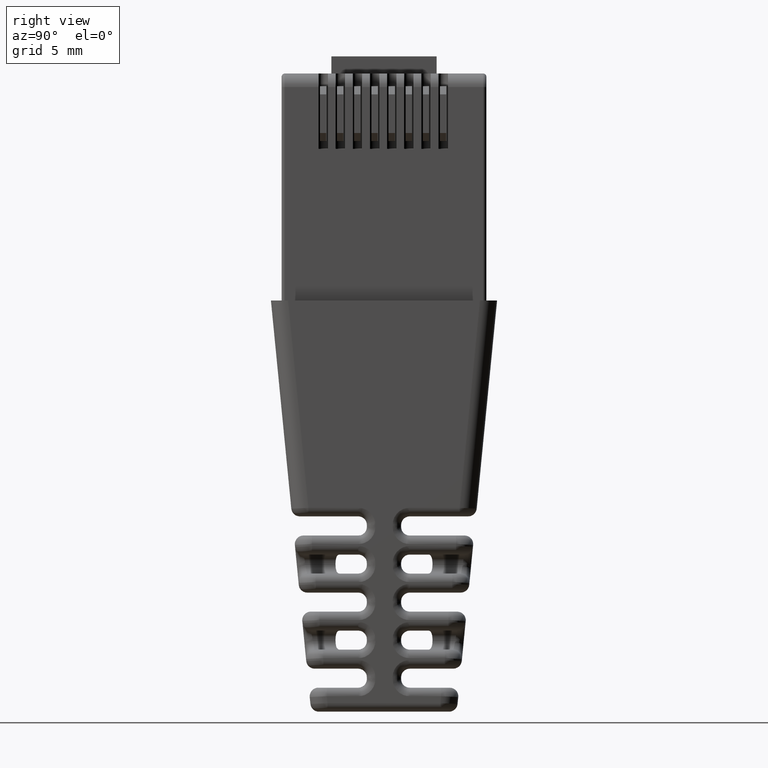
[diagram: clean part render]
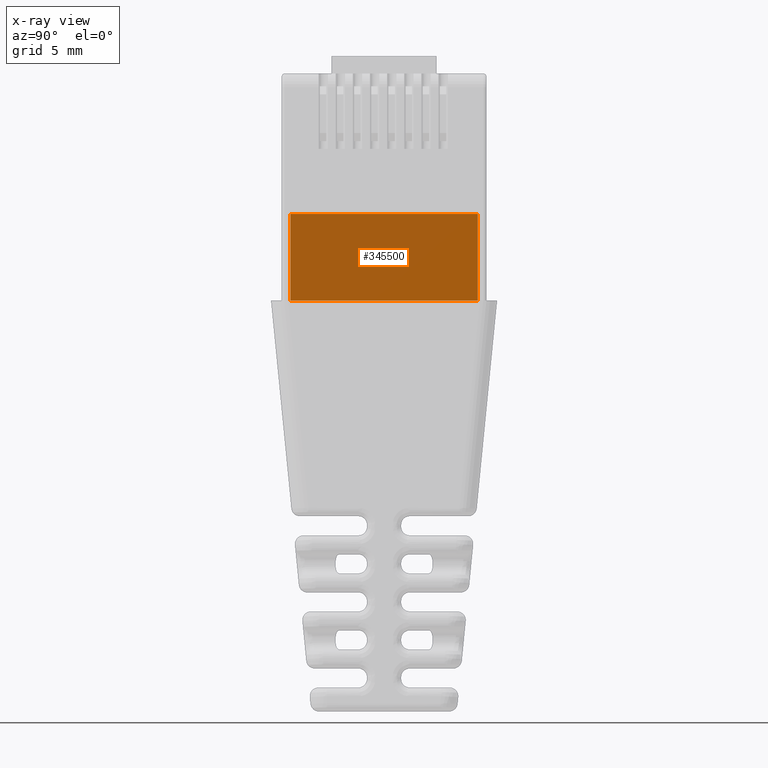
[diagram: x-ray — body ghosted, one internal face saturated and labeled with its STEP entity id]
A machine part, right view, then the same camera in x-ray: the body is ghosted and one INTERNAL B-rep face — a face not visible from any outside direction — is saturated and labeled: STEP entity #345500.
In plain terms, the highlighted planar face has unit normal (1, -0, -0).
Its self-contained STEP definition (entity closure, byte-faithful):
#344920=CARTESIAN_POINT('',(16.9031426136379,7.41886962969769,0.));
#344930=VERTEX_POINT('',#344920);
#344960=CARTESIAN_POINT('',(0.,7.41886962969769,0.));
#344970=DIRECTION('',(1.,3.38963670212153E-32,0.));
#344980=VECTOR('',#344970,1.);
#344990=LINE('',#344960,#344980);
#345000=CARTESIAN_POINT('',(5.95314261363792,7.41886962969769,0.));
#345010=VERTEX_POINT('',#345000);
#345020=EDGE_CURVE('',#345010,#344930,#344990,.T.);
#345200=CARTESIAN_POINT('',(5.95314261363792,7.41886962969769,3.75));
#345210=DIRECTION('',(3.38963670212153E-32,-1.,3.88578058618805E-16));
#345220=DIRECTION('',(-1.,3.08148791101958E-32,1.66533453693773E-16));
#345230=AXIS2_PLACEMENT_3D('',#345200,#345210,#345220);
#345240=PLANE('',#345230);
#345250=ORIENTED_EDGE('',*,*,#345020,.F.);
#345260=CARTESIAN_POINT('',(16.9031426136379,7.41886962969768,-13.25));
#345270=DIRECTION('',(-1.66533453693773E-16,-3.88578058618805E-16,-1.));
#345280=VECTOR('',#345270,1.);
#345290=LINE('',#345260,#345280);
#345300=CARTESIAN_POINT('',(16.9031426136379,7.41886962969769,
-5.04849896480331));
#345310=VERTEX_POINT('',#345300);
#345320=EDGE_CURVE('',#344930,#345310,#345290,.T.);
#345330=ORIENTED_EDGE('',*,*,#345320,.F.);
#345340=CARTESIAN_POINT('',(11.4281426136379,7.41886962969769,
-5.04849896480331));
#345350=DIRECTION('',(-1.,3.08148791101958E-32,1.66533453693773E-16));
#345360=VECTOR('',#345350,1.);
#345370=LINE('',#345340,#345360);
#345380=CARTESIAN_POINT('',(5.95314261363792,7.41886962969769,
-5.04849896480331));
#345390=VERTEX_POINT('',#345380);
#345400=EDGE_CURVE('',#345310,#345390,#345370,.T.);
#345410=ORIENTED_EDGE('',*,*,#345400,.F.);
#345420=CARTESIAN_POINT('',(5.95314261363792,7.41886962969768,-13.25));
#345430=DIRECTION('',(-1.66533453693773E-16,-3.88578058618805E-16,-1.));
#345440=VECTOR('',#345430,1.);
#345450=LINE('',#345420,#345440);
#345460=EDGE_CURVE('',#345010,#345390,#345450,.T.);
#345470=ORIENTED_EDGE('',*,*,#345460,.T.);
#345480=EDGE_LOOP('',(#345470,#345410,#345330,#345250));
#345490=FACE_OUTER_BOUND('',#345480,.T.);
#345500=ADVANCED_FACE('',(#345490),#345240,.T.);